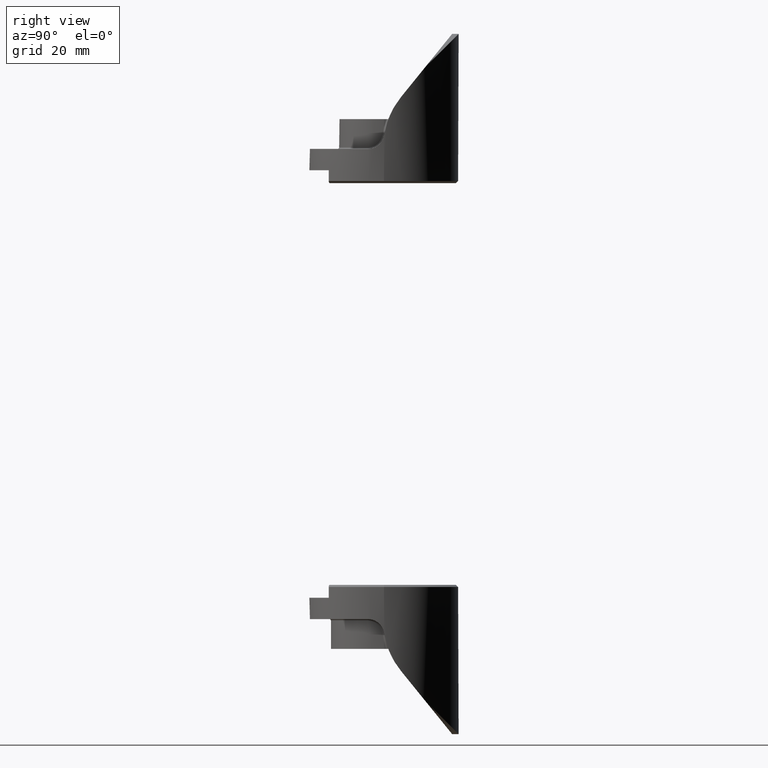
[diagram: clean part render]
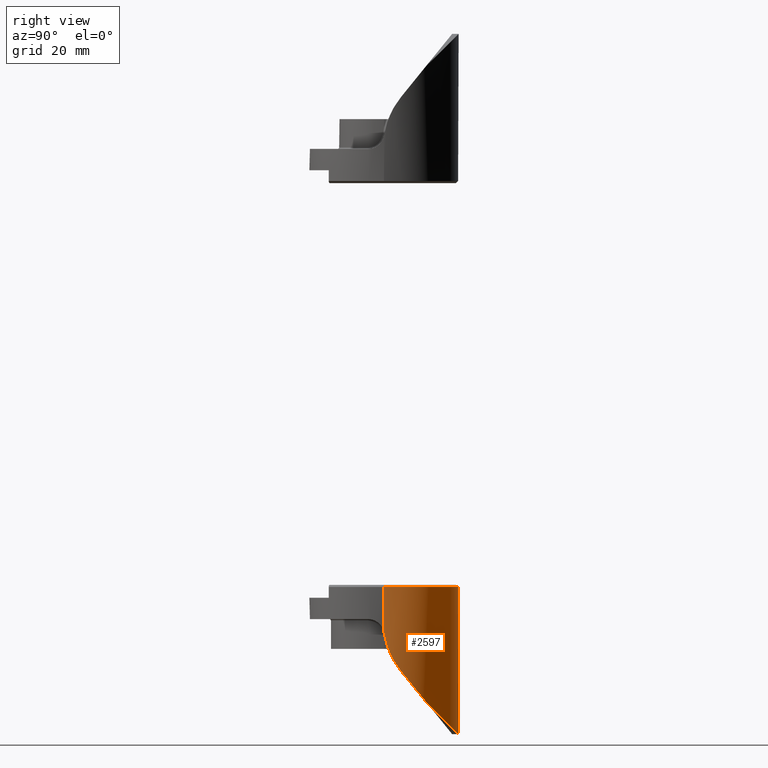
[diagram: same view with one face highlighted and labeled with its STEP entity id]
A machine part, right view. The second image highlights one B-rep face of the part: STEP entity #2597.
In plain terms, the highlighted cylindrical surface (partial cylindrical patch) has radius 17.4625 mm, axis along (-0, 0, 1).
Its self-contained STEP definition (entity closure, byte-faithful):
#33 = CARTESIAN_POINT ( 'NONE',  ( 0.6874023309294313700, 0.02904262098666739200, 0.5682359023916895300 ) ) ;
#106 = VERTEX_POINT ( 'NONE', #1587 ) ;
#130 = DIRECTION ( 'NONE',  ( 1.000000000000000000, 0.0000000000000000000, 0.0000000000000000000 ) ) ;
#171 = CARTESIAN_POINT ( 'NONE',  ( -0.6874497586564752800, 0.01253162505733394800, 0.5055372613930341200 ) ) ;
#207 = CARTESIAN_POINT ( 'NONE',  ( -0.6691870774860014800, 0.1576226675505274800, 0.7940632791002483200 ) ) ;
#230 = CYLINDRICAL_SURFACE ( 'NONE', #839, 0.6875000000000000000 ) ;
#271 = CARTESIAN_POINT ( 'NONE',  ( 0.2755899135643640800, 0.8369621564773644900, 1.524462156477364800 ) ) ;
#277 = VECTOR ( 'NONE', #754, 39.37007874015748100 ) ;
#298 = FACE_OUTER_BOUND ( 'NONE', #963, .T. ) ;
#312 = VERTEX_POINT ( 'NONE', #723 ) ;
#384 = EDGE_CURVE ( 'NONE', #312, #2784, #2667, .T. ) ;
#391 = CARTESIAN_POINT ( 'NONE',  ( -0.6875000000000000000, 3.414809992080329000E-017, 0.4411788309688118300 ) ) ;
#394 = DIRECTION ( 'NONE',  ( -0.0000000000000000000, -0.0000000000000000000, -1.000000000000000000 ) ) ;
#418 = ORIENTED_EDGE ( 'NONE', *, *, #2489, .F. ) ;
#477 = ORIENTED_EDGE ( 'NONE', *, *, #637, .F. ) ;
#529 = CARTESIAN_POINT ( 'NONE',  ( 0.5762268724134610400, 0.3749917885882312300, 1.062491788588231200 ) ) ;
#637 = EDGE_CURVE ( 'NONE', #930, #1490, #2115, .T. ) ;
#701 = VERTEX_POINT ( 'NONE', #2382 ) ;
#702 = EDGE_CURVE ( 'NONE', #2404, #1111, #2019, .T. ) ;
#723 = CARTESIAN_POINT ( 'NONE',  ( 0.6875000000000000000, 3.414809992080329000E-017, 0.4411788309688118300 ) ) ;
#747 = B_SPLINE_CURVE_WITH_KNOTS ( 'NONE', 3,
 ( #826, #2134, #1046, #2571, #1273, #2799, #1489, #171, #1714, #391 ),
 .UNSPECIFIED., .F., .F.,
 ( 4, 2, 2, 2, 4 ),
 ( 0.0000000000000000000, 0.002468962774427527600, 0.004937925548855055300, 0.007406888323282583400, 0.009875851097710110600 ),
 .UNSPECIFIED. ) ;
#750 = CARTESIAN_POINT ( 'NONE',  ( 0.6691870774860014800, 0.1576226675505274800, 0.7940632791002483200 ) ) ;
#754 = DIRECTION ( 'NONE',  ( -0.0000000000000000000, -0.0000000000000000000, -1.000000000000000000 ) ) ;
#826 = CARTESIAN_POINT ( 'NONE',  ( -0.6691870774860014800, 0.1576226675505274800, 0.7940632791002483200 ) ) ;
#839 = AXIS2_PLACEMENT_3D ( 'NONE', #2795, #972, #1203 ) ;
#842 = EDGE_CURVE ( 'NONE', #2404, #701, #1259, .T. ) ;
#930 = VERTEX_POINT ( 'NONE', #1008 ) ;
#950 = CARTESIAN_POINT ( 'NONE',  ( 0.6774544027757866100, 0.1183609508057786200, 0.7422262559714304400 ) ) ;
#963 = EDGE_LOOP ( 'NONE', ( #1621, #1109, #2749, #477, #2403, #2269, #1624, #418 ) ) ;
#972 = DIRECTION ( 'NONE',  ( -0.0000000000000000000, -0.0000000000000000000, -1.000000000000000000 ) ) ;
#1008 = CARTESIAN_POINT ( 'NONE',  ( -0.6875000000000000000, 3.414809992080329000E-017, 0.4411788309688118300 ) ) ;
#1019 = VECTOR ( 'NONE', #394, 39.37007874015748100 ) ;
#1026 = EDGE_CURVE ( 'NONE', #1111, #930, #747, .T. ) ;
#1046 = CARTESIAN_POINT ( 'NONE',  ( -0.6774385731095552400, 0.1184313747615249700, 0.7423079545784515600 ) ) ;
#1092 = CIRCLE ( 'NONE', #1486, 0.6875000000000000000 ) ;
#1109 = ORIENTED_EDGE ( 'NONE', *, *, #384, .T. ) ;
#1111 = VERTEX_POINT ( 'NONE', #2389 ) ;
#1162 = CARTESIAN_POINT ( 'NONE',  ( 0.6509385170207736500, 0.2350969359144853600, 0.8897360328075331100 ) ) ;
#1184 = CARTESIAN_POINT ( 'NONE',  ( 0.6875000000000000000, 8.419446744138052500E-017, 0.02000000000000033300 ) ) ;
#1194 = CARTESIAN_POINT ( 'NONE',  ( 0.6196410617198480100, 0.3082798677310651900, 0.9801094272147257100 ) ) ;
#1203 = DIRECTION ( 'NONE',  ( -1.000000000000000000, 0.0000000000000000000, 0.0000000000000000000 ) ) ;
#1259 =( BOUNDED_CURVE ( )  B_SPLINE_CURVE ( 3, ( #2432, #2661, #271, #1800 ),
 .UNSPECIFIED., .F., .T. ) 
 B_SPLINE_CURVE_WITH_KNOTS ( ( 4, 4 ),
 ( 2.147713421654917600, 4.135471885524668600 ),
 .UNSPECIFIED. ) 
 CURVE ( )  GEOMETRIC_REPRESENTATION_ITEM ( )  RATIONAL_B_SPLINE_CURVE ( ( 1.000000000000000000, 0.6969617343885881100, 0.6969617343885881100, 1.000000000000000000 ) ) 
 REPRESENTATION_ITEM ( '' )  );
#1273 = CARTESIAN_POINT ( 'NONE',  ( -0.6841149419152043900, 0.06943789803446477600, 0.6586138794929858900 ) ) ;
#1343 = CARTESIAN_POINT ( 'NONE',  ( 0.6841726100142093700, 0.06885772873536134800, 0.6574552217935201200 ) ) ;
#1401 = CARTESIAN_POINT ( 'NONE',  ( 0.6875000000000000000, 8.419446744138052500E-017, 1.375000000000000000 ) ) ;
#1446 = CARTESIAN_POINT ( 'NONE',  ( 0.6875000000000000000, 3.414809992080329000E-017, 0.4411788309688118300 ) ) ;
#1486 = AXIS2_PLACEMENT_3D ( 'NONE', #2800, #2821, #130 ) ;
#1489 = CARTESIAN_POINT ( 'NONE',  ( -0.6868520873186748600, 0.03127974503418016300, 0.5682498643845984600 ) ) ;
#1490 = VERTEX_POINT ( 'NONE', #2673 ) ;
#1521 = CARTESIAN_POINT ( 'NONE',  ( -0.5762268724134610400, 0.3749917885882312300, 1.062491788588231200 ) ) ;
#1572 = EDGE_CURVE ( 'NONE', #312, #106, #1586, .T. ) ;
#1586 = B_SPLINE_CURVE_WITH_KNOTS ( 'NONE', 3,
 ( #1446, #1808, #33, #1343, #1958, #950, #2232, #2242 ),
 .UNSPECIFIED., .F., .F.,
 ( 4, 2, 2, 4 ),
 ( 5.513760050241965700E-018, 0.004941576959309951400, 0.007412365438964924100, 0.009883153918619897600 ),
 .UNSPECIFIED. ) ;
#1587 = CARTESIAN_POINT ( 'NONE',  ( 0.6691870774860014800, 0.1576226675505274800, 0.7940632791002483200 ) ) ;
#1621 = ORIENTED_EDGE ( 'NONE', *, *, #1572, .F. ) ;
#1624 = ORIENTED_EDGE ( 'NONE', *, *, #842, .T. ) ;
#1714 = CARTESIAN_POINT ( 'NONE',  ( -0.6875000000000001100, 0.005220435350104488600, 0.4736343257233554500 ) ) ;
#1717 = CARTESIAN_POINT ( 'NONE',  ( -0.6875000000000000000, 0.0000000000000000000, 1.375000000000000000 ) ) ;
#1800 = CARTESIAN_POINT ( 'NONE',  ( 0.5762268724134610400, 0.3749917885882312300, 1.062491788588231200 ) ) ;
#1808 = CARTESIAN_POINT ( 'NONE',  ( 0.6875000000000000000, 0.01043772493792578300, 0.5060702632447499100 ) ) ;
#1832 = CARTESIAN_POINT ( 'NONE',  ( -0.5762268724134610400, 0.3749917885882312300, 1.062491788588231200 ) ) ;
#1902 = EDGE_CURVE ( 'NONE', #2784, #1490, #1092, .T. ) ;
#1958 = CARTESIAN_POINT ( 'NONE',  ( 0.6825375694997546400, 0.08423923514202383300, 0.6866395701092348200 ) ) ;
#2019 =( BOUNDED_CURVE ( )  B_SPLINE_CURVE ( 3, ( #1521, #2160, #2833, #207 ),
 .UNSPECIFIED., .F., .T. ) 
 B_SPLINE_CURVE_WITH_KNOTS ( ( 4, 4 ),
 ( 4.135471885524668600, 4.481062024681751400 ),
 .UNSPECIFIED. ) 
 CURVE ( )  GEOMETRIC_REPRESENTATION_ITEM ( )  RATIONAL_B_SPLINE_CURVE ( ( 1.000000000000000000, 0.9900720274617272900, 0.9900720274617272900, 1.000000000000000000 ) ) 
 REPRESENTATION_ITEM ( '' )  );
#2115 = LINE ( 'NONE', #1717, #1019 ) ;
#2134 = CARTESIAN_POINT ( 'NONE',  ( -0.6740141775195630500, 0.1371292130595597500, 0.7687559704217717900 ) ) ;
#2160 = CARTESIAN_POINT ( 'NONE',  ( -0.6196410617198480100, 0.3082798677310652500, 0.9801094272147258300 ) ) ;
#2232 = CARTESIAN_POINT ( 'NONE',  ( 0.6740097344779225600, 0.1371480759940411400, 0.7687792642059270200 ) ) ;
#2242 = CARTESIAN_POINT ( 'NONE',  ( 0.6691870774860014800, 0.1576226675505274800, 0.7940632791002483200 ) ) ;
#2269 = ORIENTED_EDGE ( 'NONE', *, *, #702, .F. ) ;
#2382 = CARTESIAN_POINT ( 'NONE',  ( 0.5762268724134610400, 0.3749917885882312300, 1.062491788588231200 ) ) ;
#2389 = CARTESIAN_POINT ( 'NONE',  ( -0.6691870774860014800, 0.1576226675505274800, 0.7940632791002483200 ) ) ;
#2403 = ORIENTED_EDGE ( 'NONE', *, *, #1026, .F. ) ;
#2404 = VERTEX_POINT ( 'NONE', #1832 ) ;
#2432 = CARTESIAN_POINT ( 'NONE',  ( -0.5762268724134610400, 0.3749917885882312300, 1.062491788588231200 ) ) ;
#2489 = EDGE_CURVE ( 'NONE', #106, #701, #2764, .T. ) ;
#2571 = CARTESIAN_POINT ( 'NONE',  ( -0.6824911956519111900, 0.08458592508354759200, 0.6872369748058865200 ) ) ;
#2597 = ADVANCED_FACE ( 'NONE', ( #298 ), #230, .T. ) ;
#2661 = CARTESIAN_POINT ( 'NONE',  ( -0.2755899135643643500, 0.8369621564773644900, 1.524462156477364800 ) ) ;
#2667 = LINE ( 'NONE', #1401, #277 ) ;
#2673 = CARTESIAN_POINT ( 'NONE',  ( -0.6875000000000000000, 0.0000000000000000000, 0.02000000000000033300 ) ) ;
#2749 = ORIENTED_EDGE ( 'NONE', *, *, #1902, .T. ) ;
#2764 =( BOUNDED_CURVE ( )  B_SPLINE_CURVE ( 3, ( #750, #1162, #1194, #529 ),
 .UNSPECIFIED., .F., .F. ) 
 B_SPLINE_CURVE_WITH_KNOTS ( ( 4, 4 ),
 ( 1.802123282497835000, 2.147713421654917600 ),
 .UNSPECIFIED. ) 
 CURVE ( )  GEOMETRIC_REPRESENTATION_ITEM ( )  RATIONAL_B_SPLINE_CURVE ( ( 1.000000000000000000, 0.9900720274617272900, 0.9900720274617272900, 1.000000000000000000 ) ) 
 REPRESENTATION_ITEM ( '' )  );
#2784 = VERTEX_POINT ( 'NONE', #1184 ) ;
#2795 = CARTESIAN_POINT ( 'NONE',  ( 0.0000000000000000000, 0.0000000000000000000, 1.375000000000000000 ) ) ;
#2799 = CARTESIAN_POINT ( 'NONE',  ( -0.6862968004496472500, 0.04279692895133087300, 0.5991929853624784500 ) ) ;
#2800 = CARTESIAN_POINT ( 'NONE',  ( 0.0000000000000000000, 0.0000000000000000000, 0.02000000000000033300 ) ) ;
#2821 = DIRECTION ( 'NONE',  ( -0.0000000000000000000, -0.0000000000000000000, 1.000000000000000000 ) ) ;
#2833 = CARTESIAN_POINT ( 'NONE',  ( -0.6509385170207735400, 0.2350969359144854100, 0.8897360328075331100 ) ) ;